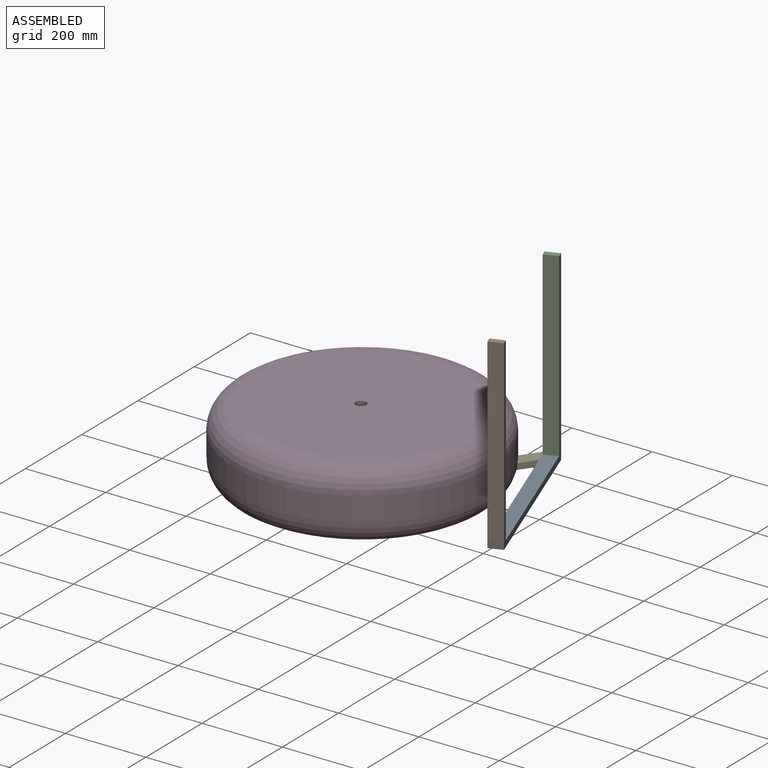
[diagram: assembled view]
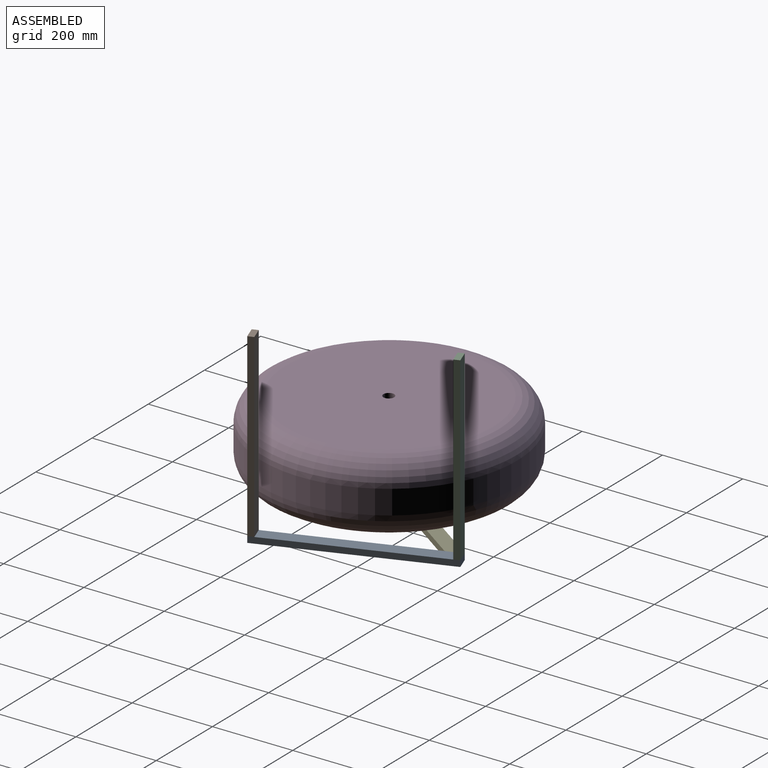
[diagram: assembled view, second angle]
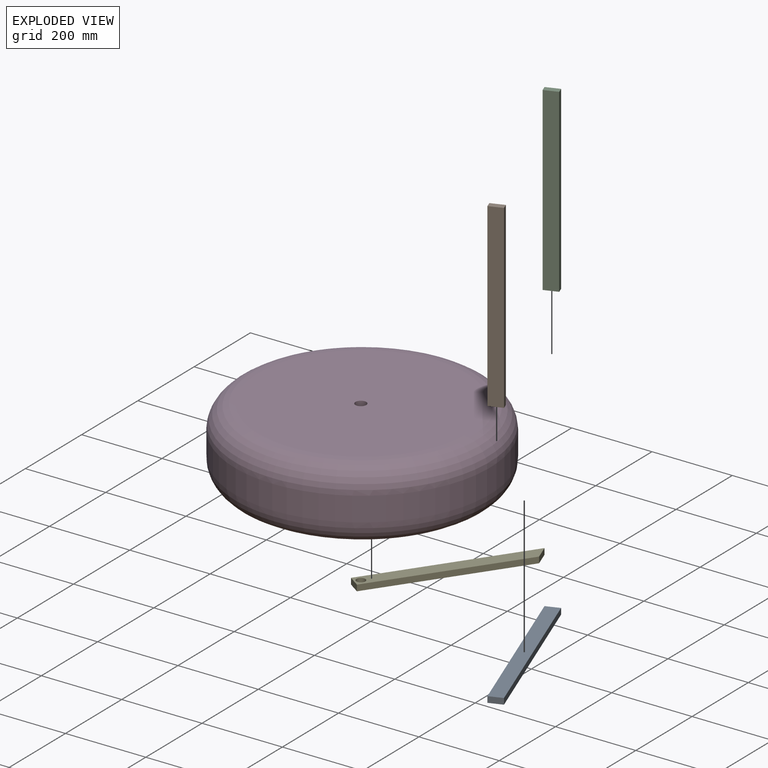
[diagram: exploded view]
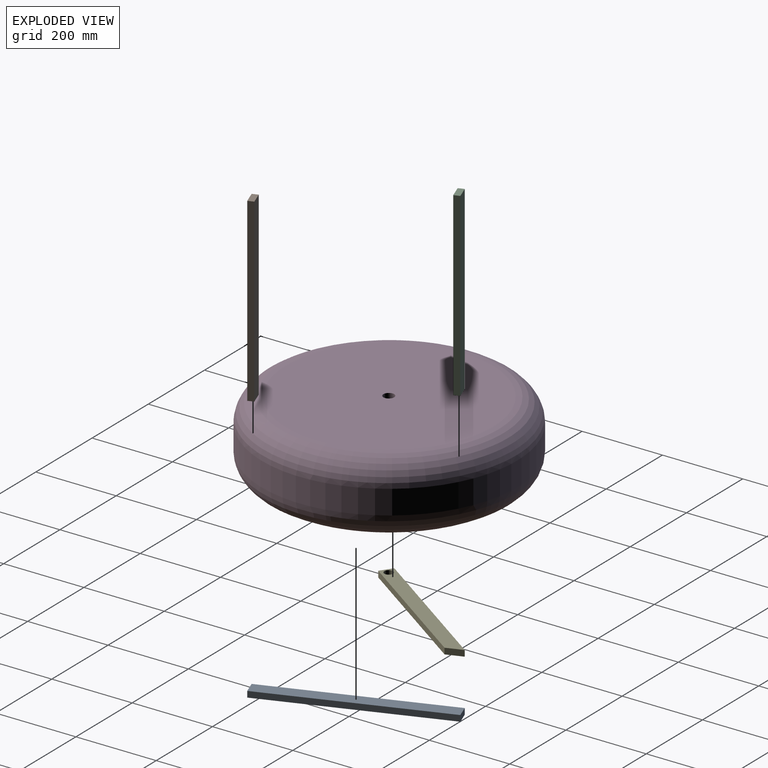
[diagram: exploded view, second angle]
ASSEMBLY  parts=5 mates=4
PART A: 6 faces, bbox 35x450x15 mm
  f0: plane 450x15mm, normal (1,0,0), area 6750mm2, adj f1,f3,f4,f5
  f1: plane 450x35mm, normal (0,0,1), area 15750mm2, adj f0,f2,f4,f5
  f2: plane 450x15mm, normal (-1,0,0), area 6750mm2, adj f1,f3,f4,f5
  f3: plane 450x35mm, normal (0,0,-1), area 15750mm2, adj f0,f2,f4,f5
  f4: plane 35x15mm, normal (0,-1,0), area 525mm2, adj f0,f1,f2,f3
  f5: plane 35x15mm, normal (0,1,0), area 525mm2, adj f0,f1,f2,f3
PART B: same geometry as A
PART C: same geometry as A
PART D: 6 faces, bbox 688.4x180x688.4 mm
  f0: cylinder r=318mm len=636mm, axis (0,1,0), area 119883.2mm2, adj f3,f4
  f1: plane 516x516mm, normal (0,-1,0), area 208544.4mm2, adj f4,f5
  f2: plane 516x516mm, normal (0,1,0), area 208544.4mm2, adj f3,f5
  f3: torus R=258mm, axis (0,-1,0), area 175400.9mm2, adj f0,f2
  f4: torus R=258mm, axis (0,-1,0), area 175400.9mm2, adj f0,f1
  f5: cylinder r=13.5mm len=180mm, axis (0,-1,0), area 15268.1mm2, adj f1,f2
PART E: 7 faces, bbox 35x420x15 mm
  f0: plane 420x35mm, normal (0,0,1), area 13891mm2, adj f2,f3,f4,f5,f6
  f1: plane 420x35mm, normal (0,0,-1), area 13891mm2, adj f2,f3,f4,f5,f6
  f2: plane 395.49x15mm, normal (1,0,0), area 5932.4mm2, adj f0,f1,f4,f5
  f3: plane 420x15mm, normal (-1,0,0), area 6300mm2, adj f0,f1,f4,f5
  f4: plane 35x15mm, normal (0,-1,0), area 525mm2, adj f0,f1,f2,f3
  f5: plane 35x24.51mm, normal (0.57,0.82,0), area 640.9mm2, adj f0,f1,f2,f3
  f6: cylinder r=11mm len=22mm, axis (0,0,-1), area 1036.7mm2, adj f0,f1
PLACE A rot(axis=(0,0,1),20deg) t=(102.92,-185.23,100.2)mm
PLACE B rot(axis=(-0.97,-0.17,0.17),91.7deg) t=(254.26,-601.05,107.7)mm
PLACE C rot(axis=(0.12,-0.7,-0.7),165.9deg) t=(105.48,-192.28,557.7)mm
PLACE D rot(axis=(0.91,-0.29,-0.29),95.2deg) t=(-129.77,-530.56,287.7)mm
PLACE E rot(axis=(0,0,-1),35deg) t=(100.81,-201.25,100.2)mm
MATE fastened B.f5 <-> A.f1  axis (0,0,-1) through (256.83,-608.09,107.7)mm
MATE fastened A.f2 <-> E.f5  axis (-0.94,-0.34,0) through (86.47,-191.22,100.2)mm
MATE fastened D.f5 <-> E.f6  axis (0,0,-1) through (-131.49,-533.01,107.7)mm
MATE fastened C.f4 <-> A.f1  axis (0,0,-1) through (102.92,-185.23,107.7)mm
